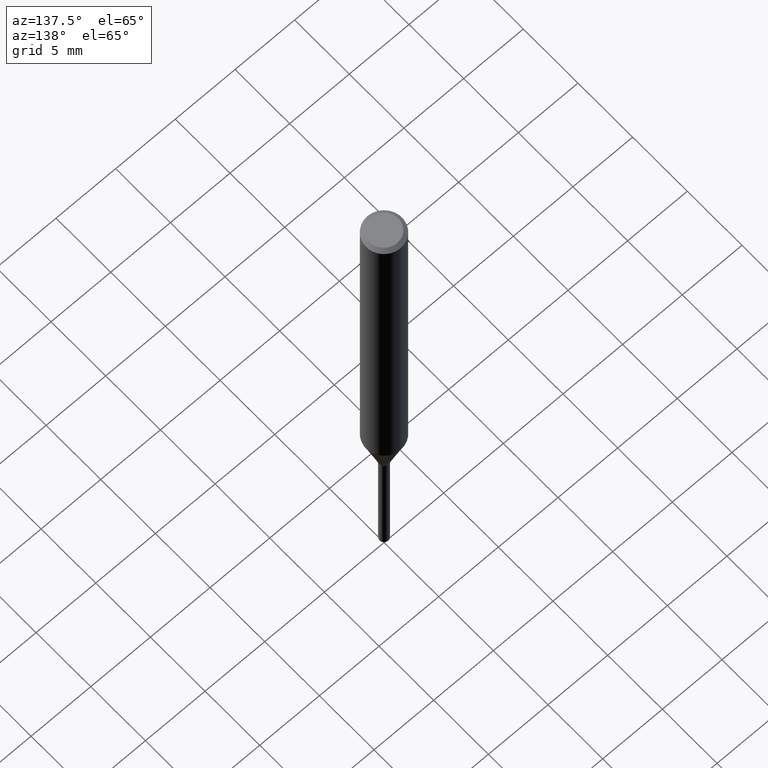
[diagram: clean part render]
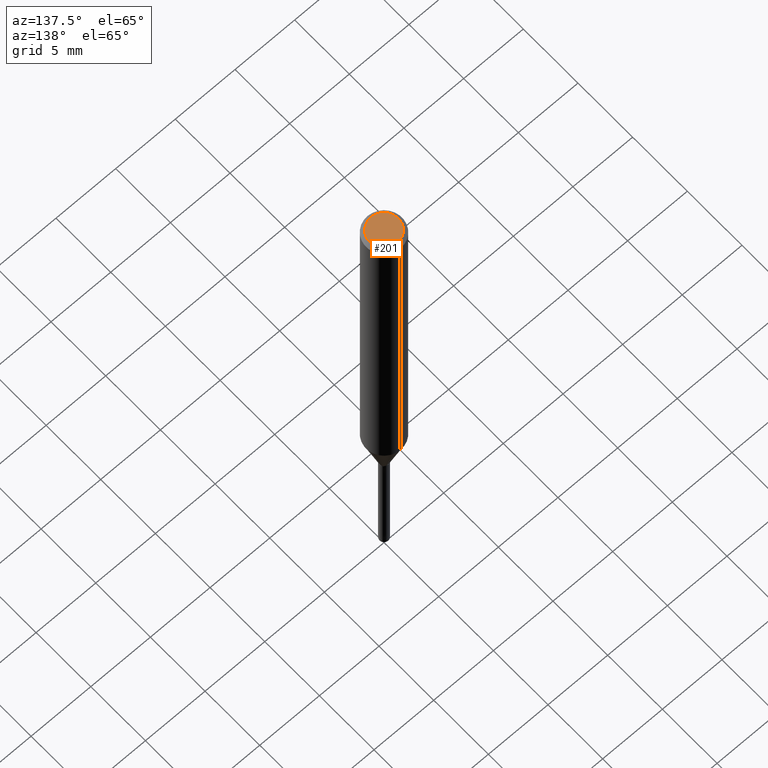
[diagram: same view with one face highlighted and labeled with its STEP entity id]
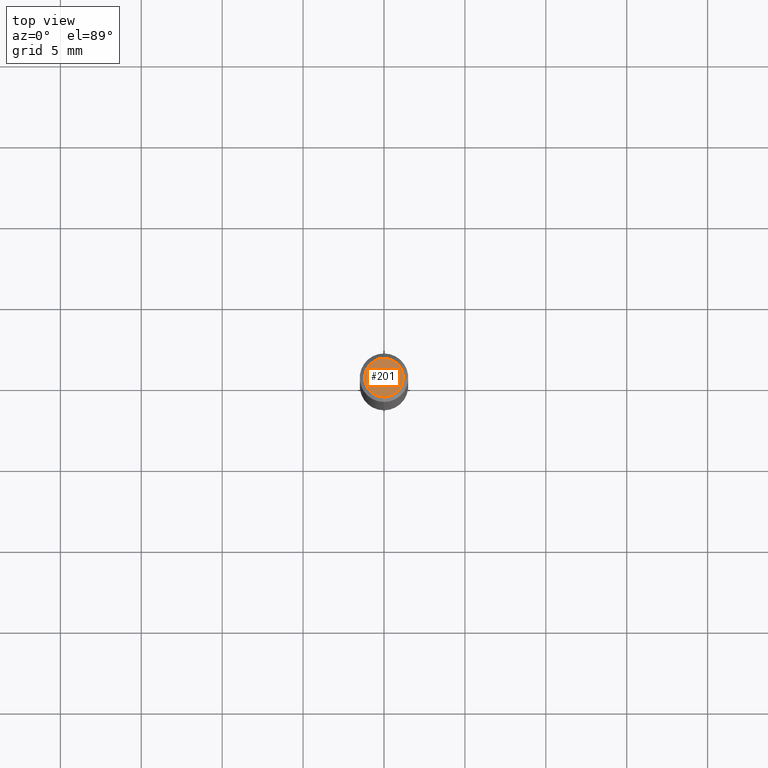
[diagram: same view with one face highlighted and labeled with its STEP entity id]
A machine part, auxiliary view. The second image highlights one B-rep face of the part: STEP entity #201.
A second angle (top view) of the same face is appended — the face is thin or edge-on in the first view.
In plain terms, the highlighted planar face has unit normal (-0, 0, 1).
Its self-contained STEP definition (entity closure, byte-faithful):
#93=VERTEX_POINT('',#228);
#159=EDGE_CURVE('',#93,#191,#304,.T.);
#173=EDGE_CURVE('',#191,#93,#319,.T.);
#191=VERTEX_POINT('',#340);
#201=ADVANCED_FACE('',(#350),#351,.T.);
#228=CARTESIAN_POINT('',(1.46952762458685E-016,-1.2,0.0));
#304=CIRCLE('',#465,1.2);
#319=CIRCLE('',#489,1.2);
#340=CARTESIAN_POINT('',(0.0,1.2,0.0));
#350=FACE_OUTER_BOUND('',#526,.T.);
#351=PLANE('',#527);
#465=AXIS2_PLACEMENT_3D('',#636,#637,#638);
#489=AXIS2_PLACEMENT_3D('',#656,#657,#658);
#526=EDGE_LOOP('',(#692,#693));
#527=AXIS2_PLACEMENT_3D('',#694,#695,#696);
#636=CARTESIAN_POINT('',(0.0,0.0,0.0));
#637=DIRECTION('',(0.0,0.0,-1.0));
#638=DIRECTION('',(0.0,1.0,0.0));
#656=CARTESIAN_POINT('',(0.0,0.0,0.0));
#657=DIRECTION('',(0.0,0.0,-1.0));
#658=DIRECTION('',(0.0,1.0,0.0));
#692=ORIENTED_EDGE('',*,*,#173,.F.);
#693=ORIENTED_EDGE('',*,*,#159,.F.);
#694=CARTESIAN_POINT('',(0.0,0.6,0.0));
#695=DIRECTION('',(-0.0,0.0,1.0));
#696=DIRECTION('',(0.0,-1.0,0.0));